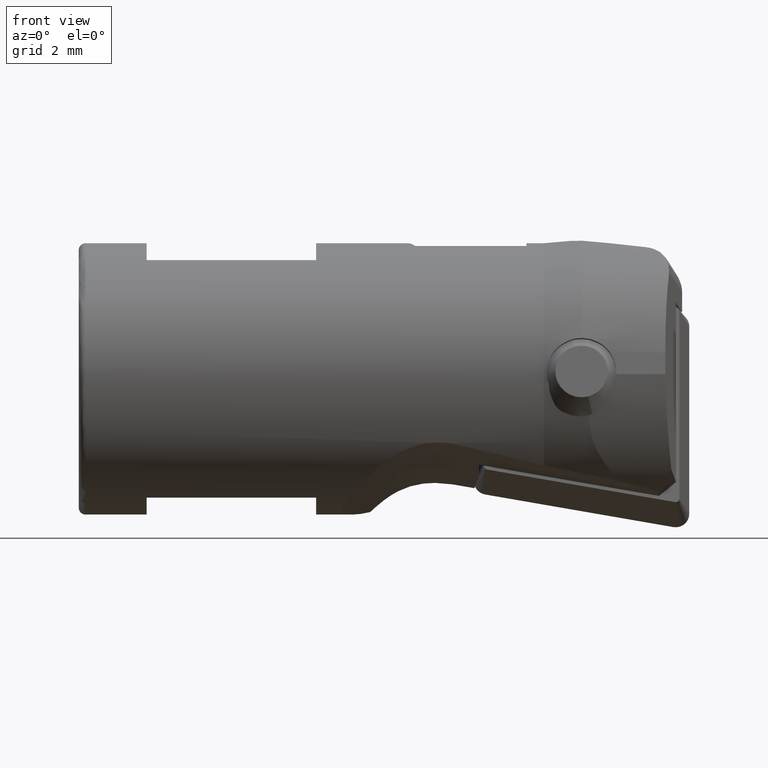
[diagram: clean part render]
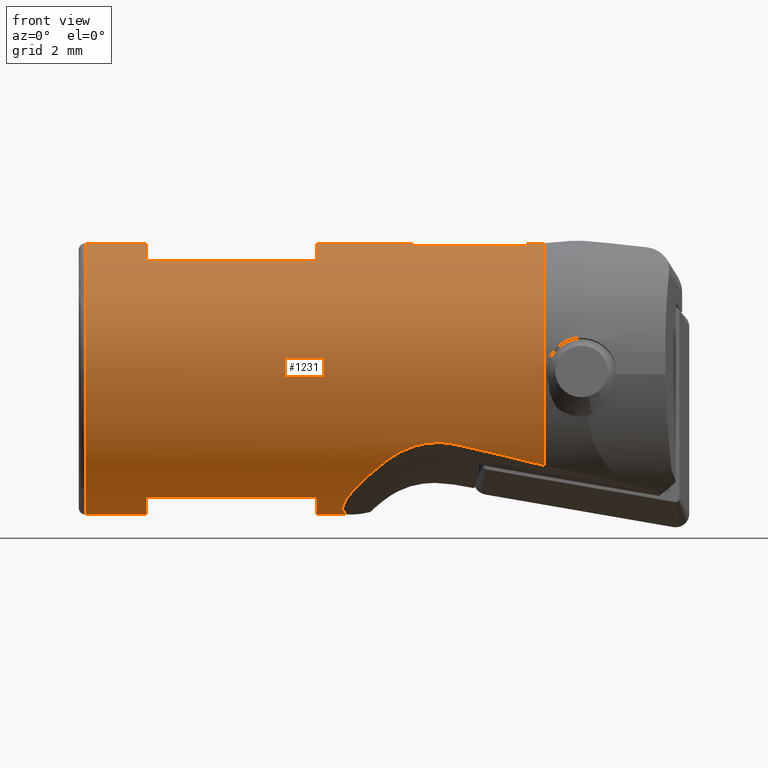
[diagram: same view with one face highlighted and labeled with its STEP entity id]
A machine part, front view. The second image highlights one B-rep face of the part: STEP entity #1231.
In plain terms, the highlighted cylindrical surface (partial cylindrical patch) has radius 4 mm, axis along (-1, -0, -0).
Its self-contained STEP definition (entity closure, byte-faithful):
#5 = VECTOR ( 'NONE', #1112, 1000.000000000000000 ) ;
#51 = DIRECTION ( 'NONE',  ( 0.0000000000000000000, 0.0000000000000000000, 1.000000000000000000 ) ) ;
#68 = ORIENTED_EDGE ( 'NONE', *, *, #1070, .T. ) ;
#69 = CARTESIAN_POINT ( 'NONE',  ( -10.56795131985114400, -1.277435549974845300, 0.3750000000000010500 ) ) ;
#83 = DIRECTION ( 'NONE',  ( 1.000000000000000000, 0.0000000000000000000, 0.0000000000000000000 ) ) ;
#90 = DIRECTION ( 'NONE',  ( -1.000000000000000000, -0.0000000000000000000, -0.0000000000000000000 ) ) ;
#109 = DIRECTION ( 'NONE',  ( 0.0000000000000000000, 1.000000000000000000, 0.0000000000000000000 ) ) ;
#119 = EDGE_CURVE ( 'NONE', #3015, #1419, #3975, .T. ) ;
#155 = ORIENTED_EDGE ( 'NONE', *, *, #4685, .F. ) ;
#161 = LINE ( 'NONE', #1422, #3895 ) ;
#173 = LINE ( 'NONE', #933, #1978 ) ;
#206 = EDGE_CURVE ( 'NONE', #1168, #3129, #2172, .T. ) ;
#215 = EDGE_CURVE ( 'NONE', #755, #3439, #2554, .T. ) ;
#221 = CARTESIAN_POINT ( 'NONE',  ( -8.358874925335340900, -3.423407742605312000, 2.305394279240663600 ) ) ;
#230 = CIRCLE ( 'NONE', #487, 3.999999999999999100 ) ;
#284 = ORIENTED_EDGE ( 'NONE', *, *, #1114, .T. ) ;
#334 = CARTESIAN_POINT ( 'NONE',  ( -21.56769568915706300, 4.898587196589411800E-016, 0.3750000000000012200 ) ) ;
#447 = ORIENTED_EDGE ( 'NONE', *, *, #3180, .T. ) ;
#487 = AXIS2_PLACEMENT_3D ( 'NONE', #4441, #2279, #109 ) ;
#500 = VERTEX_POINT ( 'NONE', #2888 ) ;
#545 = VERTEX_POINT ( 'NONE', #4322 ) ;
#559 = VECTOR ( 'NONE', #2541, 1000.000000000000000 ) ;
#573 = CARTESIAN_POINT ( 'NONE',  ( -4.286269613535838900, 0.0000000000000000000, 4.375000000000000000 ) ) ;
#580 = CARTESIAN_POINT ( 'NONE',  ( -7.966441640982232300, -3.498674169502768500, 2.435911897533658400 ) ) ;
#582 = ORIENTED_EDGE ( 'NONE', *, *, #1246, .T. ) ;
#585 = VERTEX_POINT ( 'NONE', #2850 ) ;
#594 = CARTESIAN_POINT ( 'NONE',  ( -8.157825160542591500, -0.5452141465317457100, 8.347083374077820700 ) ) ;
#743 = ORIENTED_EDGE ( 'NONE', *, *, #2437, .T. ) ;
#755 = VERTEX_POINT ( 'NONE', #4095 ) ;
#785 = CARTESIAN_POINT ( 'NONE',  ( -9.915671574023639000, 4.898587196589411800E-016, 0.3750000000000012200 ) ) ;
#799 = CARTESIAN_POINT ( 'NONE',  ( -21.56769568915706300, -1.936491673103707000, 7.875000000000000000 ) ) ;
#811 = CARTESIAN_POINT ( 'NONE',  ( -5.920062265559041100, -3.380294244687740000, 2.221847483689130400 ) ) ;
#845 = CARTESIAN_POINT ( 'NONE',  ( -11.00000000000000000, 0.0000000000000000000, 4.375000000000000000 ) ) ;
#900 = ORIENTED_EDGE ( 'NONE', *, *, #206, .T. ) ;
#915 = CARTESIAN_POINT ( 'NONE',  ( -4.799999999999999800, -0.8128332137552571900, 8.291542118580661500 ) ) ;
#920 = DIRECTION ( 'NONE',  ( 0.0000000000000000000, 0.0000000000000000000, 1.000000000000000000 ) ) ;
#932 = CARTESIAN_POINT ( 'NONE',  ( -7.549714062706769400, -3.532154934245764500, 2.497799552396363400 ) ) ;
#933 = CARTESIAN_POINT ( 'NONE',  ( -21.56769568915706300, 0.0000000000000000000, 8.375000000000000000 ) ) ;
#944 = CARTESIAN_POINT ( 'NONE',  ( -8.224351687841313200, -0.2733217814294795500, 8.375000000000000000 ) ) ;
#984 = CIRCLE ( 'NONE', #2586, 4.000000000000000000 ) ;
#994 = CARTESIAN_POINT ( 'NONE',  ( -11.00000000000000000, 4.898587196589411800E-016, 0.3750000000000012200 ) ) ;
#1013 = CARTESIAN_POINT ( 'NONE',  ( -17.80000000000000100, 0.0000000000000000000, 4.375000000000000000 ) ) ;
#1026 = CARTESIAN_POINT ( 'NONE',  ( -6.893641129380998000, -3.501151245033923900, 2.440590539881124500 ) ) ;
#1050 = DIRECTION ( 'NONE',  ( 0.0000000000000000000, 0.0000000000000000000, 1.000000000000000000 ) ) ;
#1070 = EDGE_CURVE ( 'NONE', #4652, #2286, #173, .T. ) ;
#1112 = DIRECTION ( 'NONE',  ( -1.000000000000000000, -0.0000000000000000000, -0.0000000000000000000 ) ) ;
#1114 = EDGE_CURVE ( 'NONE', #1573, #4411, #1860, .T. ) ;
#1168 = VERTEX_POINT ( 'NONE', #2465 ) ;
#1174 = VECTOR ( 'NONE', #1768, 1000.000000000000000 ) ;
#1223 = DIRECTION ( 'NONE',  ( 0.0000000000000000000, 0.0000000000000000000, 1.000000000000000000 ) ) ;
#1231 = ADVANCED_FACE ( 'NONE', ( #4203 ), #2260, .T. ) ;
#1246 = EDGE_CURVE ( 'NONE', #755, #4225, #2385, .T. ) ;
#1294 = LINE ( 'NONE', #334, #1174 ) ;
#1306 = EDGE_CURVE ( 'NONE', #500, #4326, #230, .T. ) ;
#1362 = DIRECTION ( 'NONE',  ( 1.000000000000000000, 0.0000000000000000000, 0.0000000000000000000 ) ) ;
#1395 = DIRECTION ( 'NONE',  ( 0.0000000000000000000, 0.0000000000000000000, -1.000000000000000000 ) ) ;
#1402 =( BOUNDED_CURVE ( )  B_SPLINE_CURVE ( 3, ( #3367, #811, #1556, #4086 ),
 .UNSPECIFIED., .F., .F. ) 
 B_SPLINE_CURVE_WITH_KNOTS ( ( 4, 4 ),
 ( 2.391586870276289000, 2.578745586375287500 ),
 .UNSPECIFIED. ) 
 CURVE ( )  GEOMETRIC_REPRESENTATION_ITEM ( )  RATIONAL_B_SPLINE_CURVE ( ( 1.000000000000000000, 0.9970830974810472900, 0.9970830974810472900, 1.000000000000000000 ) ) 
 REPRESENTATION_ITEM ( '' )  );
#1412 = DIRECTION ( 'NONE',  ( -1.000000000000000000, -0.0000000000000000000, -0.0000000000000000000 ) ) ;
#1419 = VERTEX_POINT ( 'NONE', #3084 ) ;
#1422 = CARTESIAN_POINT ( 'NONE',  ( -21.56769568915706300, -1.936491673103708700, 0.8750000000000016700 ) ) ;
#1432 = VERTEX_POINT ( 'NONE', #2735 ) ;
#1507 = ORIENTED_EDGE ( 'NONE', *, *, #1812, .T. ) ;
#1556 = CARTESIAN_POINT ( 'NONE',  ( -5.048395861012879000, -3.239526064672028300, 2.015354726770260700 ) ) ;
#1573 = VERTEX_POINT ( 'NONE', #2984 ) ;
#1658 = CARTESIAN_POINT ( 'NONE',  ( -8.823342738731785300, -3.251348050562967700, 2.042902535821336900 ) ) ;
#1727 = B_SPLINE_CURVE_WITH_KNOTS ( 'NONE', 3,
 ( #2833, #1753, #3211, #1026 ),
 .UNSPECIFIED., .F., .F.,
 ( 4, 4 ),
 ( 0.001676555564552672100, 0.002197181589134361400 ),
 .UNSPECIFIED. ) ;
#1744 = ORIENTED_EDGE ( 'NONE', *, *, #3782, .F. ) ;
#1753 = CARTESIAN_POINT ( 'NONE',  ( -7.236316921403581400, -3.532154934245764500, 2.497799552396363400 ) ) ;
#1768 = DIRECTION ( 'NONE',  ( -1.000000000000000000, -0.0000000000000000000, -0.0000000000000000000 ) ) ;
#1784 = VERTEX_POINT ( 'NONE', #3166 ) ;
#1787 = CARTESIAN_POINT ( 'NONE',  ( -21.56769568915706300, 0.0000000000000000000, 8.375000000000000000 ) ) ;
#1804 = AXIS2_PLACEMENT_3D ( 'NONE', #573, #3104, #920 ) ;
#1812 = EDGE_CURVE ( 'NONE', #1419, #3439, #2821, .T. ) ;
#1860 = CIRCLE ( 'NONE', #2525, 3.999999999999999100 ) ;
#1865 = EDGE_CURVE ( 'NONE', #2111, #500, #2380, .T. ) ;
#1868 = CARTESIAN_POINT ( 'NONE',  ( -21.56769568915706300, -0.8128332137552554100, 8.291542118580661500 ) ) ;
#1875 = LINE ( 'NONE', #1868, #3691 ) ;
#1878 =( BOUNDED_CURVE ( )  B_SPLINE_CURVE ( 3, ( #3130, #594, #944, #3501 ),
 .UNSPECIFIED., .F., .F. ) 
 B_SPLINE_CURVE_WITH_KNOTS ( ( 4, 4 ),
 ( 5.886565606772795600, 6.091199089460205900 ),
 .UNSPECIFIED. ) 
 CURVE ( )  GEOMETRIC_REPRESENTATION_ITEM ( )  RATIONAL_B_SPLINE_CURVE ( ( 1.000000000000000000, 0.9965134713627403800, 0.9965134713627403800, 1.000000000000000000 ) ) 
 REPRESENTATION_ITEM ( '' )  );
#1978 = VECTOR ( 'NONE', #3474, 1000.000000000000000 ) ;
#2061 = CARTESIAN_POINT ( 'NONE',  ( -16.00000000000000000, 0.0000000000000000000, 4.375000000000000000 ) ) ;
#2111 = VERTEX_POINT ( 'NONE', #4142 ) ;
#2172 =( BOUNDED_CURVE ( )  B_SPLINE_CURVE ( 3, ( #785, #69, #3700, #4060 ),
 .UNSPECIFIED., .F., .F. ) 
 B_SPLINE_CURVE_WITH_KNOTS ( ( 4, 4 ),
 ( 5.983117622690821600, 6.906767405391178700 ),
 .UNSPECIFIED. ) 
 CURVE ( )  GEOMETRIC_REPRESENTATION_ITEM ( )  RATIONAL_B_SPLINE_CURVE ( ( 1.000000000000000000, 0.9301605659236813500, 0.9301605659236813500, 1.000000000000000000 ) ) 
 REPRESENTATION_ITEM ( '' )  );
#2186 = ORIENTED_EDGE ( 'NONE', *, *, #215, .F. ) ;
#2226 = DIRECTION ( 'NONE',  ( -1.000000000000000000, 0.0000000000000000000, 0.0000000000000000000 ) ) ;
#2243 = CIRCLE ( 'NONE', #4474, 3.999999999999999100 ) ;
#2260 = CYLINDRICAL_SURFACE ( 'NONE', #3095, 4.000000000000000000 ) ;
#2265 = VERTEX_POINT ( 'NONE', #3143 ) ;
#2279 = DIRECTION ( 'NONE',  ( 1.000000000000000000, -8.122806265266877500E-017, 1.578913592908403300E-017 ) ) ;
#2286 = VERTEX_POINT ( 'NONE', #4254 ) ;
#2306 = LINE ( 'NONE', #799, #4240 ) ;
#2380 = LINE ( 'NONE', #1787, #559 ) ;
#2384 = ORIENTED_EDGE ( 'NONE', *, *, #4331, .T. ) ;
#2385 = CIRCLE ( 'NONE', #3977, 4.000000000000000000 ) ;
#2393 = CARTESIAN_POINT ( 'NONE',  ( -8.483809945331833200, -3.387999158555655900, 2.247185227918193200 ) ) ;
#2437 = EDGE_CURVE ( 'NONE', #4225, #1573, #161, .T. ) ;
#2439 = DIRECTION ( 'NONE',  ( 0.0000000000000000000, 0.0000000000000000000, -1.000000000000000000 ) ) ;
#2465 = CARTESIAN_POINT ( 'NONE',  ( -9.915671574023639000, 4.898587196589411800E-016, 0.3750000000000012200 ) ) ;
#2516 = DIRECTION ( 'NONE',  ( 1.000000000000000000, 0.0000000000000000000, 0.0000000000000000000 ) ) ;
#2525 = AXIS2_PLACEMENT_3D ( 'NONE', #3535, #1362, #3887 ) ;
#2541 = DIRECTION ( 'NONE',  ( -1.000000000000000000, -0.0000000000000000000, -0.0000000000000000000 ) ) ;
#2554 = LINE ( 'NONE', #4414, #3639 ) ;
#2586 = AXIS2_PLACEMENT_3D ( 'NONE', #845, #3400, #1223 ) ;
#2732 = ORIENTED_EDGE ( 'NONE', *, *, #119, .T. ) ;
#2735 = CARTESIAN_POINT ( 'NONE',  ( -16.00000000000000000, -1.936491673103707600, 7.875000000000000000 ) ) ;
#2740 = ORIENTED_EDGE ( 'NONE', *, *, #1865, .T. ) ;
#2745 = CARTESIAN_POINT ( 'NONE',  ( -8.099830943349649800, -3.478687510297845600, 2.399722394895453800 ) ) ;
#2752 = EDGE_CURVE ( 'NONE', #1168, #4411, #1294, .T. ) ;
#2785 = B_SPLINE_CURVE_WITH_KNOTS ( 'NONE', 3,
 ( #3455, #1658, #4561, #2393, #221, #2745, #580, #3117, #932, #3483 ),
 .UNSPECIFIED., .F., .F.,
 ( 4, 2, 2, 2, 4 ),
 ( 4.336808689942017300E-019, 0.0004191388911381683500, 0.0008382777822763362800, 0.001257416673414504200, 0.001676555564552672100 ),
 .UNSPECIFIED. ) ;
#2786 = ORIENTED_EDGE ( 'NONE', *, *, #2752, .F. ) ;
#2821 = CIRCLE ( 'NONE', #4037, 3.999999999999999100 ) ;
#2833 = CARTESIAN_POINT ( 'NONE',  ( -7.409937690877574000, -3.532154934245763200, 2.497799552396363000 ) ) ;
#2850 = CARTESIAN_POINT ( 'NONE',  ( -11.00000000000000000, -1.936491673103708700, 7.874999999999998200 ) ) ;
#2888 = CARTESIAN_POINT ( 'NONE',  ( -4.799999999999998900, 5.130083689916564400E-033, 8.375000000000000000 ) ) ;
#2945 = ORIENTED_EDGE ( 'NONE', *, *, #3456, .T. ) ;
#2954 = EDGE_CURVE ( 'NONE', #1432, #585, #2306, .T. ) ;
#2984 = CARTESIAN_POINT ( 'NONE',  ( -11.00000000000000000, -1.936491673103709400, 0.8750000000000007800 ) ) ;
#2987 = CARTESIAN_POINT ( 'NONE',  ( -16.00000000000000000, 0.0000000000000000000, 8.375000000000000000 ) ) ;
#3015 = VERTEX_POINT ( 'NONE', #2987 ) ;
#3054 = CARTESIAN_POINT ( 'NONE',  ( -8.923929026965293300, -3.191229711960828400, 1.963350579893838700 ) ) ;
#3084 = CARTESIAN_POINT ( 'NONE',  ( -17.80000000000000100, 0.0000000000000000000, 8.375000000000000000 ) ) ;
#3095 = AXIS2_PLACEMENT_3D ( 'NONE', #3233, #1412, #1050 ) ;
#3104 = DIRECTION ( 'NONE',  ( -1.000000000000000000, -0.0000000000000000000, -0.0000000000000000000 ) ) ;
#3117 = CARTESIAN_POINT ( 'NONE',  ( -7.691912667579660300, -3.525470696640055300, 2.485068789451665900 ) ) ;
#3129 = VERTEX_POINT ( 'NONE', #3054 ) ;
#3130 = CARTESIAN_POINT ( 'NONE',  ( -8.069228883413265100, -0.8128332137552557500, 8.291542118580661500 ) ) ;
#3143 = CARTESIAN_POINT ( 'NONE',  ( -8.069228883413265100, -0.8128332137552557500, 8.291542118580661500 ) ) ;
#3153 = ORIENTED_EDGE ( 'NONE', *, *, #3369, .F. ) ;
#3166 = CARTESIAN_POINT ( 'NONE',  ( -7.409937690877574000, -3.532154934245763200, 2.497799552396363000 ) ) ;
#3180 = EDGE_CURVE ( 'NONE', #545, #2111, #3774, .T. ) ;
#3211 = CARTESIAN_POINT ( 'NONE',  ( -7.064190161749508000, -3.522322662399380600, 2.478909383846651600 ) ) ;
#3215 = ORIENTED_EDGE ( 'NONE', *, *, #2954, .F. ) ;
#3233 = CARTESIAN_POINT ( 'NONE',  ( -21.56769568915706300, 0.0000000000000000000, 4.375000000000000000 ) ) ;
#3290 = CARTESIAN_POINT ( 'NONE',  ( -21.56769568915706300, 0.0000000000000000000, 8.375000000000000000 ) ) ;
#3367 = CARTESIAN_POINT ( 'NONE',  ( -6.893641129380998000, -3.501151245033923900, 2.440590539881124500 ) ) ;
#3369 = EDGE_CURVE ( 'NONE', #3015, #1432, #2243, .T. ) ;
#3375 = ORIENTED_EDGE ( 'NONE', *, *, #3748, .T. ) ;
#3400 = DIRECTION ( 'NONE',  ( -1.000000000000000000, 0.0000000000000000000, 0.0000000000000000000 ) ) ;
#3439 = VERTEX_POINT ( 'NONE', #3565 ) ;
#3455 = CARTESIAN_POINT ( 'NONE',  ( -8.923929026965293300, -3.191229711960828400, 1.963350579893838700 ) ) ;
#3456 = EDGE_CURVE ( 'NONE', #1784, #4180, #1727, .T. ) ;
#3474 = DIRECTION ( 'NONE',  ( -1.000000000000000000, -0.0000000000000000000, -0.0000000000000000000 ) ) ;
#3483 = CARTESIAN_POINT ( 'NONE',  ( -7.409937690877574000, -3.532154934245763200, 2.497799552396363000 ) ) ;
#3501 = CARTESIAN_POINT ( 'NONE',  ( -8.268112625381736100, 0.0000000000000000000, 8.375000000000000000 ) ) ;
#3535 = CARTESIAN_POINT ( 'NONE',  ( -11.00000000000000000, 0.0000000000000000000, 4.375000000000000000 ) ) ;
#3565 = CARTESIAN_POINT ( 'NONE',  ( -17.80000000000000100, 4.898587196589411800E-016, 0.3750000000000012200 ) ) ;
#3570 = DIRECTION ( 'NONE',  ( 1.000000000000000000, 0.0000000000000000000, 0.0000000000000000000 ) ) ;
#3639 = VECTOR ( 'NONE', #90, 1000.000000000000000 ) ;
#3691 = VECTOR ( 'NONE', #4020, 1000.000000000000000 ) ;
#3700 = CARTESIAN_POINT ( 'NONE',  ( -10.21254940202077900, -2.421048036130871100, 0.9442030093451495600 ) ) ;
#3748 = EDGE_CURVE ( 'NONE', #4180, #545, #1402, .T. ) ;
#3774 = CIRCLE ( 'NONE', #1804, 4.000000000000000000 ) ;
#3782 = EDGE_CURVE ( 'NONE', #585, #2286, #984, .T. ) ;
#3887 = DIRECTION ( 'NONE',  ( 0.0000000000000000000, 0.0000000000000000000, -1.000000000000000000 ) ) ;
#3895 = VECTOR ( 'NONE', #2516, 1000.000000000000000 ) ;
#3955 = ORIENTED_EDGE ( 'NONE', *, *, #1306, .T. ) ;
#3975 = LINE ( 'NONE', #3290, #5 ) ;
#3977 = AXIS2_PLACEMENT_3D ( 'NONE', #4399, #2226, #51 ) ;
#4020 = DIRECTION ( 'NONE',  ( 1.000000000000000000, 0.0000000000000000000, 0.0000000000000000000 ) ) ;
#4037 = AXIS2_PLACEMENT_3D ( 'NONE', #1013, #3570, #1395 ) ;
#4038 = CARTESIAN_POINT ( 'NONE',  ( -8.268112625381736100, 0.0000000000000000000, 8.375000000000000000 ) ) ;
#4060 = CARTESIAN_POINT ( 'NONE',  ( -8.923929026965293300, -3.191229711960828400, 1.963350579893838700 ) ) ;
#4086 = CARTESIAN_POINT ( 'NONE',  ( -4.286269613535838900, -3.080078526163415800, 1.822919226852920400 ) ) ;
#4095 = CARTESIAN_POINT ( 'NONE',  ( -16.00000000000000000, 4.898587196589411800E-016, 0.3750000000000012200 ) ) ;
#4142 = CARTESIAN_POINT ( 'NONE',  ( -4.286269613535838900, 0.0000000000000000000, 8.375000000000000000 ) ) ;
#4173 = EDGE_LOOP ( 'NONE', ( #2786, #900, #2384, #2945, #3375, #447, #2740, #3955, #155, #4285, #68, #1744, #3215, #3153, #2732, #1507, #2186, #582, #743, #284 ) ) ;
#4180 = VERTEX_POINT ( 'NONE', #4341 ) ;
#4203 = FACE_OUTER_BOUND ( 'NONE', #4173, .T. ) ;
#4225 = VERTEX_POINT ( 'NONE', #4353 ) ;
#4240 = VECTOR ( 'NONE', #83, 1000.000000000000000 ) ;
#4254 = CARTESIAN_POINT ( 'NONE',  ( -11.00000000000000000, 0.0000000000000000000, 8.375000000000000000 ) ) ;
#4285 = ORIENTED_EDGE ( 'NONE', *, *, #4360, .T. ) ;
#4322 = CARTESIAN_POINT ( 'NONE',  ( -4.286269613535838900, -3.080078526163415800, 1.822919226852920400 ) ) ;
#4326 = VERTEX_POINT ( 'NONE', #915 ) ;
#4331 = EDGE_CURVE ( 'NONE', #3129, #1784, #2785, .T. ) ;
#4341 = CARTESIAN_POINT ( 'NONE',  ( -6.893641129380998000, -3.501151245033923900, 2.440590539881124500 ) ) ;
#4353 = CARTESIAN_POINT ( 'NONE',  ( -16.00000000000000000, -1.936491673103708700, 0.8750000000000025500 ) ) ;
#4360 = EDGE_CURVE ( 'NONE', #2265, #4652, #1878, .T. ) ;
#4399 = CARTESIAN_POINT ( 'NONE',  ( -16.00000000000000000, 0.0000000000000000000, 4.375000000000000000 ) ) ;
#4411 = VERTEX_POINT ( 'NONE', #994 ) ;
#4414 = CARTESIAN_POINT ( 'NONE',  ( -21.56769568915706300, 4.898587196589411800E-016, 0.3750000000000012200 ) ) ;
#4441 = CARTESIAN_POINT ( 'NONE',  ( -4.799999999999998900, 0.0000000000000000000, 4.375000000000000000 ) ) ;
#4474 = AXIS2_PLACEMENT_3D ( 'NONE', #2061, #4599, #2439 ) ;
#4561 = CARTESIAN_POINT ( 'NONE',  ( -8.715317721974976500, -3.302109244710361000, 2.116193116120424400 ) ) ;
#4599 = DIRECTION ( 'NONE',  ( 1.000000000000000000, 0.0000000000000000000, 0.0000000000000000000 ) ) ;
#4652 = VERTEX_POINT ( 'NONE', #4038 ) ;
#4685 = EDGE_CURVE ( 'NONE', #2265, #4326, #1875, .T. ) ;